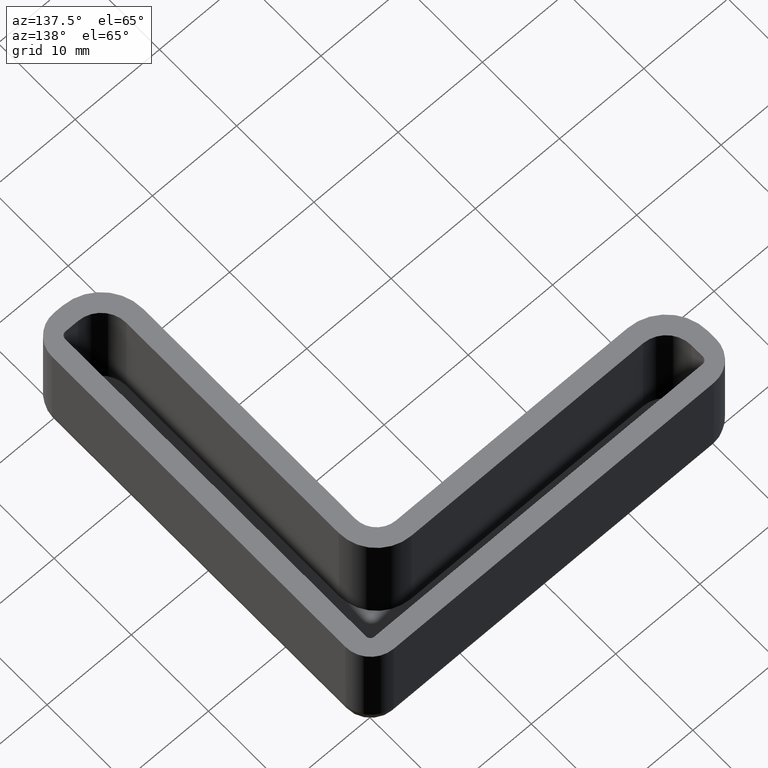
[diagram: clean part render]
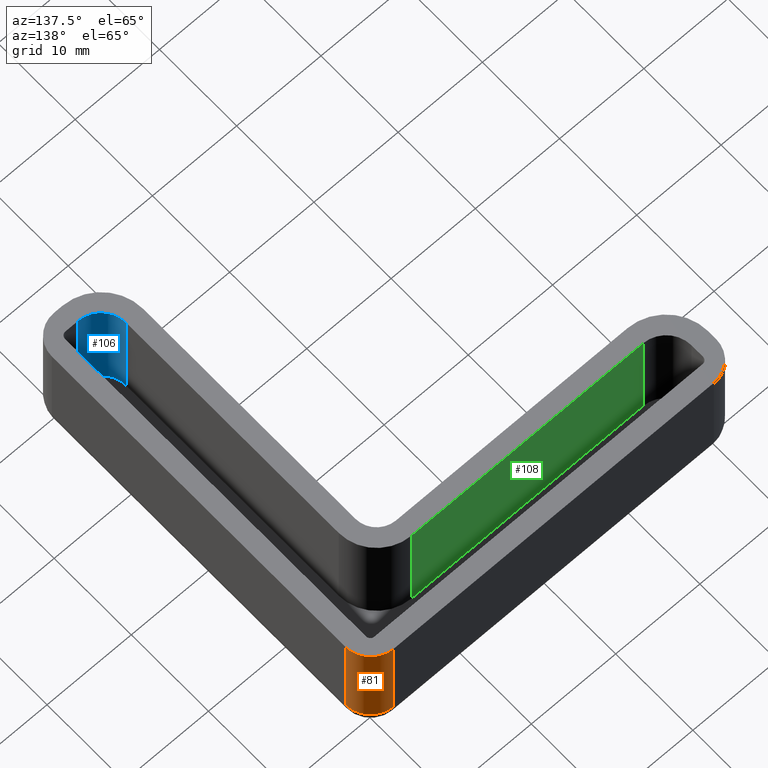
[diagram: same view with three faces highlighted in distinct colors, each labeled with its STEP entity id]
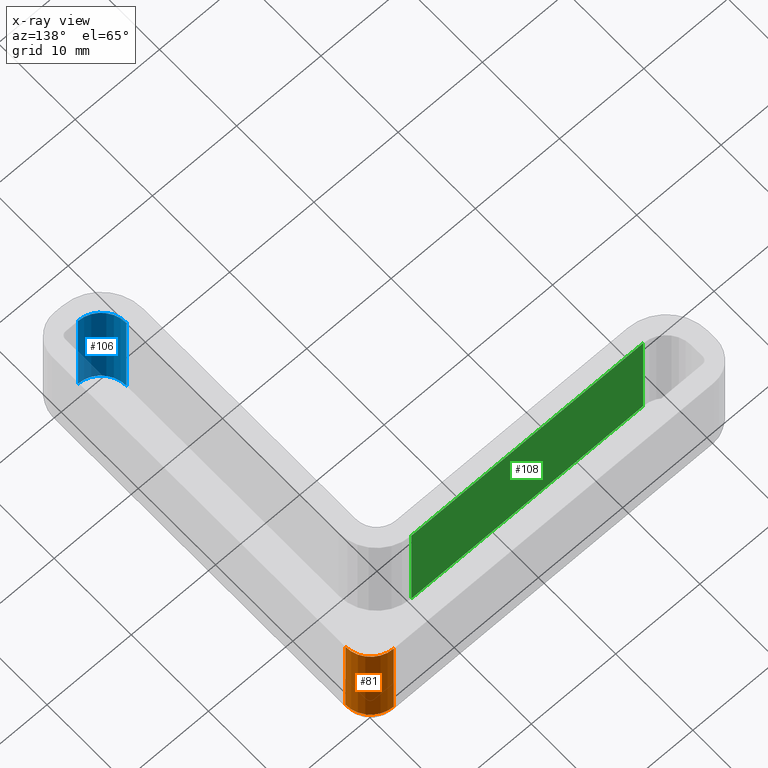
[diagram: x-ray of the same camera — body ghosted, the three highlighted faces saturated]
A machine part, auxiliary view with three faces highlighted in distinct colors.
The next image is the same camera in x-ray (body ghosted, the three faces saturated) — at least one of them is partly hidden behind the body in this view.
Their STEP definitions:

[orange] entity #81 — the highlighted cylindrical surface (edge-blend (fillet) strip) has radius 3 mm, axis along (0, 0, -1).
#81 = ADVANCED_FACE( '', ( #128 ), #129, .T. );
#128 = FACE_OUTER_BOUND( '', #207, .T. );
#129 = CYLINDRICAL_SURFACE( '', #208, 3.00000000000000 );
#207 = EDGE_LOOP( '', ( #387, #388, #389, #390 ) );
#208 = AXIS2_PLACEMENT_3D( '', #391, #392, #393 );
#387 = ORIENTED_EDGE( '', *, *, #657, .F. );
#388 = ORIENTED_EDGE( '', *, *, #658, .T. );
#389 = ORIENTED_EDGE( '', *, *, #659, .T. );
#390 = ORIENTED_EDGE( '', *, *, #616, .F. );
#391 = CARTESIAN_POINT( '', ( -1.00000000000000, -1.00000000000000, -15.0000000000000 ) );
#392 = DIRECTION( '', ( 0.000000000000000, 0.000000000000000, -1.00000000000000 ) );
#393 = DIRECTION( '', ( 1.00000000000000, -1.83690953073357E-016, 0.000000000000000 ) );
#616 = EDGE_CURVE( '', #710, #712, #713, .T. );
#657 = EDGE_CURVE( '', #787, #710, #789, .T. );
#658 = EDGE_CURVE( '', #787, #790, #791, .T. );
#659 = EDGE_CURVE( '', #790, #712, #792, .T. );
#710 = VERTEX_POINT( '', #860 );
#712 = VERTEX_POINT( '', #863 );
#713 = CIRCLE( '', #864, 3.00000000000000 );
#787 = VERTEX_POINT( '', #960 );
#789 = LINE( '', #963, #964 );
#790 = VERTEX_POINT( '', #965 );
#791 = CIRCLE( '', #966, 3.00000000000000 );
#792 = LINE( '', #967, #968 );
#860 = CARTESIAN_POINT( '', ( 2.00000000000000, -0.999999999999994, 0.000000000000000 ) );
#863 = CARTESIAN_POINT( '', ( -1.00000000000000, 2.00000000000000, 0.000000000000000 ) );
#864 = AXIS2_PLACEMENT_3D( '', #1065, #1066, #1067 );
#960 = CARTESIAN_POINT( '', ( 2.00000000000000, -0.999999999999994, -12.0000000000000 ) );
#963 = CARTESIAN_POINT( '', ( 2.00000000000000, -0.999999999999994, -15.0000000000000 ) );
#964 = VECTOR( '', #1142, 1000.00000000000 );
#965 = CARTESIAN_POINT( '', ( -1.00000000000000, 2.00000000000000, -12.0000000000000 ) );
#966 = AXIS2_PLACEMENT_3D( '', #1143, #1144, #1145 );
#967 = CARTESIAN_POINT( '', ( -1.00000000000000, 2.00000000000000, -15.0000000000000 ) );
#968 = VECTOR( '', #1146, 1000.00000000000 );
#1065 = CARTESIAN_POINT( '', ( -1.00000000000000, -1.00000000000000, 0.000000000000000 ) );
#1066 = DIRECTION( '', ( 0.000000000000000, 0.000000000000000, 1.00000000000000 ) );
#1067 = DIRECTION( '', ( 1.00000000000000, -1.83690953073357E-016, 0.000000000000000 ) );
#1142 = DIRECTION( '', ( 0.000000000000000, 0.000000000000000, 1.00000000000000 ) );
#1143 = CARTESIAN_POINT( '', ( -1.00000000000000, -1.00000000000000, -12.0000000000000 ) );
#1144 = DIRECTION( '', ( 0.000000000000000, 0.000000000000000, 1.00000000000000 ) );
#1145 = DIRECTION( '', ( -1.00000000000000, 1.22460635382238E-016, 0.000000000000000 ) );
#1146 = DIRECTION( '', ( 0.000000000000000, 0.000000000000000, 1.00000000000000 ) );

[blue] entity #106 — the highlighted cylindrical surface (edge-blend (fillet) strip) has radius 3 mm, axis along (0, 0, 1).
#106 = ADVANCED_FACE( '', ( #178 ), #179, .F. );
#178 = FACE_OUTER_BOUND( '', #301, .T. );
#179 = CYLINDRICAL_SURFACE( '', #302, 3.00000000000000 );
#301 = EDGE_LOOP( '', ( #558, #559, #560, #561 ) );
#302 = AXIS2_PLACEMENT_3D( '', #562, #563, #564 );
#558 = ORIENTED_EDGE( '', *, *, #698, .T. );
#559 = ORIENTED_EDGE( '', *, *, #654, .F. );
#560 = ORIENTED_EDGE( '', *, *, #699, .F. );
#561 = ORIENTED_EDGE( '', *, *, #629, .F. );
#562 = CARTESIAN_POINT( '', ( -2.00000000000001, -37.0000000000000, 20.0000000000000 ) );
#563 = DIRECTION( '', ( 0.000000000000000, 0.000000000000000, 1.00000000000000 ) );
#564 = DIRECTION( '', ( -1.00000000000000, 1.83690953073357E-016, 0.000000000000000 ) );
#629 = EDGE_CURVE( '', #736, #738, #739, .F. );
#654 = EDGE_CURVE( '', #782, #784, #785, .T. );
#698 = EDGE_CURVE( '', #736, #784, #848, .T. );
#699 = EDGE_CURVE( '', #738, #782, #849, .T. );
#736 = VERTEX_POINT( '', #893 );
#738 = VERTEX_POINT( '', #896 );
#739 = CIRCLE( '', #897, 3.00000000000000 );
#782 = VERTEX_POINT( '', #953 );
#784 = VERTEX_POINT( '', #956 );
#785 = CIRCLE( '', #957, 3.00000000000000 );
#848 = LINE( '', #1043, #1044 );
#849 = LINE( '', #1045, #1046 );
#893 = CARTESIAN_POINT( '', ( -2.00000000000001, -40.0000000000000, 0.000000000000000 ) );
#896 = CARTESIAN_POINT( '', ( -5.00000000000001, -37.0000000000000, 0.000000000000000 ) );
#897 = AXIS2_PLACEMENT_3D( '', #1090, #1091, #1092 );
#953 = CARTESIAN_POINT( '', ( -5.00000000000001, -37.0000000000000, -13.0000000000000 ) );
#956 = CARTESIAN_POINT( '', ( -2.00000000000001, -40.0000000000000, -13.0000000000000 ) );
#957 = AXIS2_PLACEMENT_3D( '', #1137, #1138, #1139 );
#1043 = CARTESIAN_POINT( '', ( -2.00000000000001, -40.0000000000000, 20.0000000000000 ) );
#1044 = VECTOR( '', #1223, 1000.00000000000 );
#1045 = CARTESIAN_POINT( '', ( -5.00000000000001, -37.0000000000000, 20.0000000000000 ) );
#1046 = VECTOR( '', #1224, 1000.00000000000 );
#1090 = CARTESIAN_POINT( '', ( -2.00000000000001, -37.0000000000000, 0.000000000000000 ) );
#1091 = DIRECTION( '', ( 0.000000000000000, 0.000000000000000, 1.00000000000000 ) );
#1092 = DIRECTION( '', ( -1.00000000000000, 1.22460635382238E-016, 0.000000000000000 ) );
#1137 = CARTESIAN_POINT( '', ( -2.00000000000001, -37.0000000000000, -13.0000000000000 ) );
#1138 = DIRECTION( '', ( 0.000000000000000, 0.000000000000000, 1.00000000000000 ) );
#1139 = DIRECTION( '', ( -1.00000000000000, 1.83690953073357E-016, 0.000000000000000 ) );
#1223 = DIRECTION( '', ( 0.000000000000000, 0.000000000000000, -1.00000000000000 ) );
#1224 = DIRECTION( '', ( 0.000000000000000, 0.000000000000000, -1.00000000000000 ) );

[green] entity #108 — the highlighted planar face has unit normal (0, 1, 0).
#108 = ADVANCED_FACE( '', ( #182 ), #183, .T. );
#182 = FACE_OUTER_BOUND( '', #305, .T. );
#183 = PLANE( '', #306 );
#305 = EDGE_LOOP( '', ( #572, #573, #574, #575 ) );
#306 = AXIS2_PLACEMENT_3D( '', #576, #577, #578 );
#572 = ORIENTED_EDGE( '', *, *, #701, .T. );
#573 = ORIENTED_EDGE( '', *, *, #651, .F. );
#574 = ORIENTED_EDGE( '', *, *, #702, .F. );
#575 = ORIENTED_EDGE( '', *, *, #632, .F. );
#576 = CARTESIAN_POINT( '', ( -37.0000000000000, -5.00000000000000, 20.0000000000000 ) );
#577 = DIRECTION( '', ( 1.22460635382238E-016, 1.00000000000000, 0.000000000000000 ) );
#578 = DIRECTION( '', ( -1.00000000000000, 1.22460635382238E-016, 0.000000000000000 ) );
#632 = EDGE_CURVE( '', #742, #744, #745, .T. );
#651 = EDGE_CURVE( '', #776, #778, #779, .T. );
#701 = EDGE_CURVE( '', #742, #778, #851, .T. );
#702 = EDGE_CURVE( '', #744, #776, #852, .T. );
#742 = VERTEX_POINT( '', #901 );
#744 = VERTEX_POINT( '', #903 );
#745 = LINE( '', #904, #905 );
#776 = VERTEX_POINT( '', #946 );
#778 = VERTEX_POINT( '', #948 );
#779 = LINE( '', #949, #950 );
#851 = LINE( '', #1049, #1050 );
#852 = LINE( '', #1051, #1052 );
#901 = CARTESIAN_POINT( '', ( -9.50000000000003, -5.00000000000000, 0.000000000000000 ) );
#903 = CARTESIAN_POINT( '', ( -37.0000000000000, -5.00000000000001, 0.000000000000000 ) );
#904 = CARTESIAN_POINT( '', ( -0.999999999999999, -5.00000000000000, 0.000000000000000 ) );
#905 = VECTOR( '', #1097, 1000.00000000000 );
#946 = CARTESIAN_POINT( '', ( -37.0000000000000, -5.00000000000001, -13.0000000000000 ) );
#948 = CARTESIAN_POINT( '', ( -9.50000000000003, -5.00000000000000, -13.0000000000000 ) );
#949 = CARTESIAN_POINT( '', ( -37.0000000000000, -5.00000000000000, -13.0000000000000 ) );
#950 = VECTOR( '', #1132, 1000.00000000000 );
#1049 = CARTESIAN_POINT( '', ( -9.50000000000003, -5.00000000000000, 20.0000000000000 ) );
#1050 = VECTOR( '', #1226, 1000.00000000000 );
#1051 = CARTESIAN_POINT( '', ( -37.0000000000000, -5.00000000000001, 20.0000000000000 ) );
#1052 = VECTOR( '', #1227, 1000.00000000000 );
#1097 = DIRECTION( '', ( -1.00000000000000, 1.22460635382238E-016, 0.000000000000000 ) );
#1132 = DIRECTION( '', ( 1.00000000000000, -1.22460635382238E-016, 0.000000000000000 ) );
#1226 = DIRECTION( '', ( 0.000000000000000, 0.000000000000000, -1.00000000000000 ) );
#1227 = DIRECTION( '', ( 0.000000000000000, 0.000000000000000, -1.00000000000000 ) );